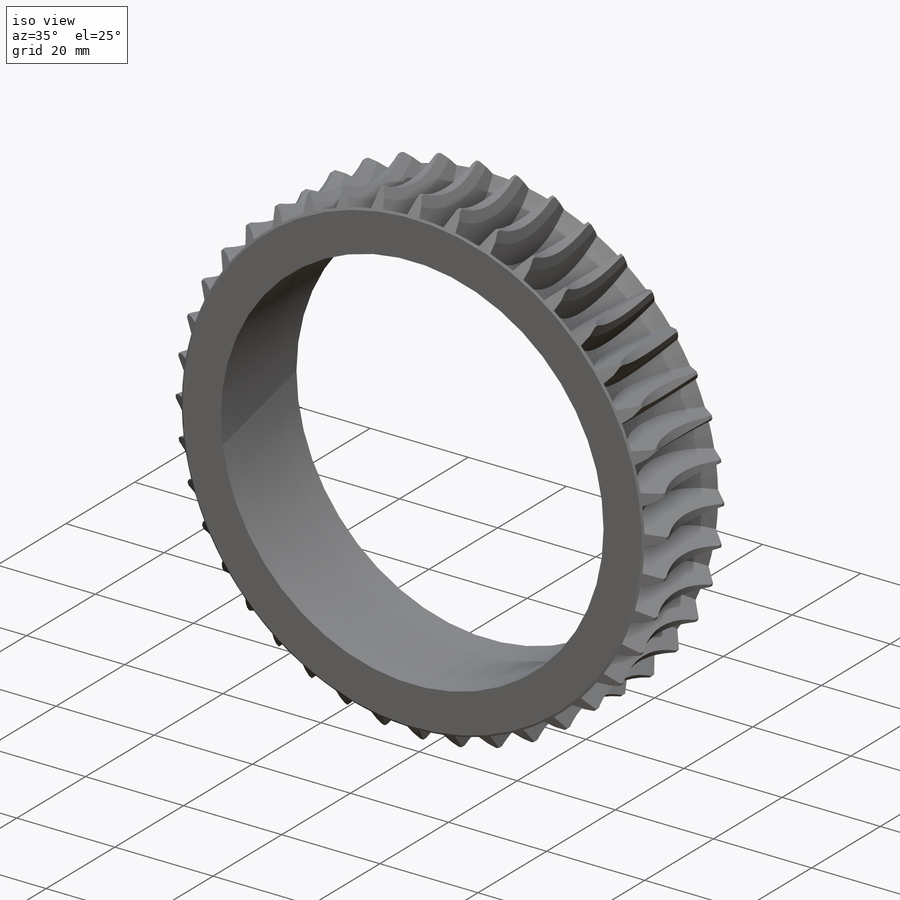
[diagram: iso view]
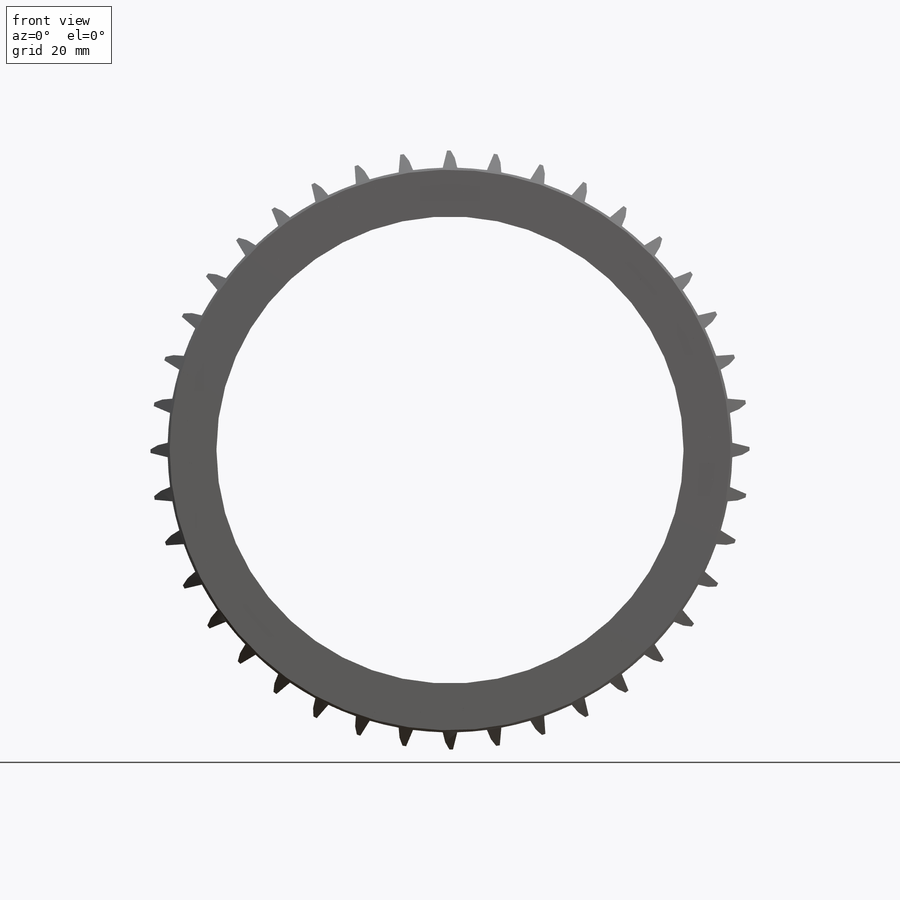
[diagram: front view]
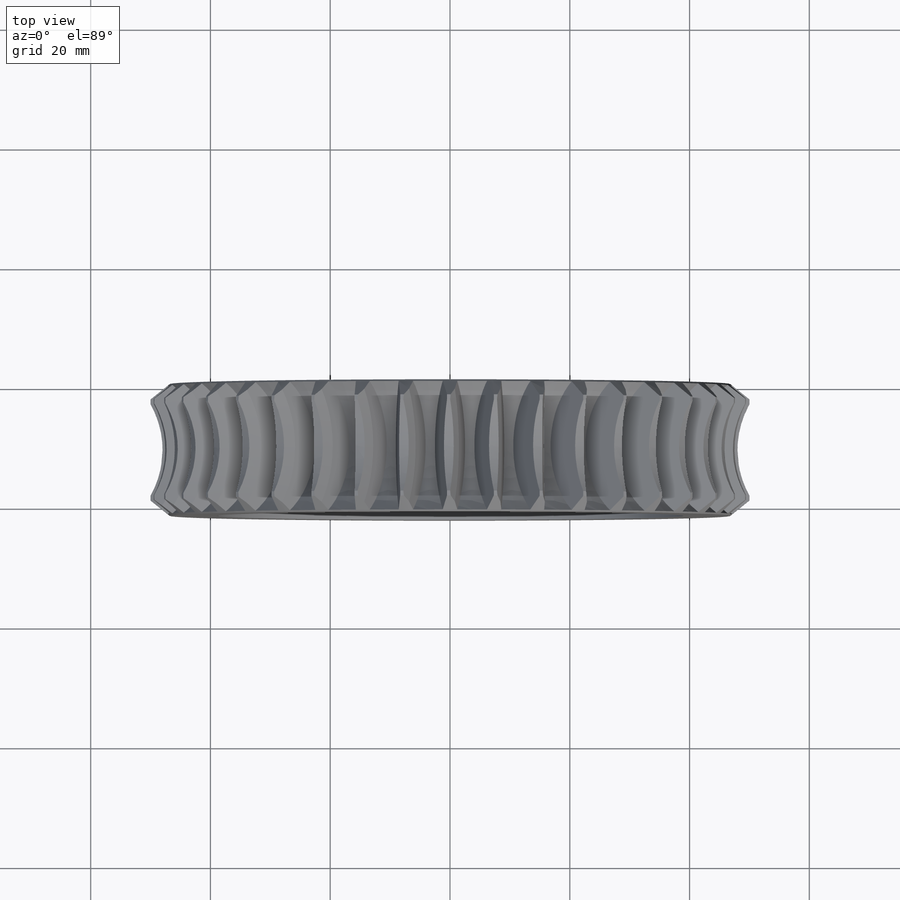
[diagram: top view]
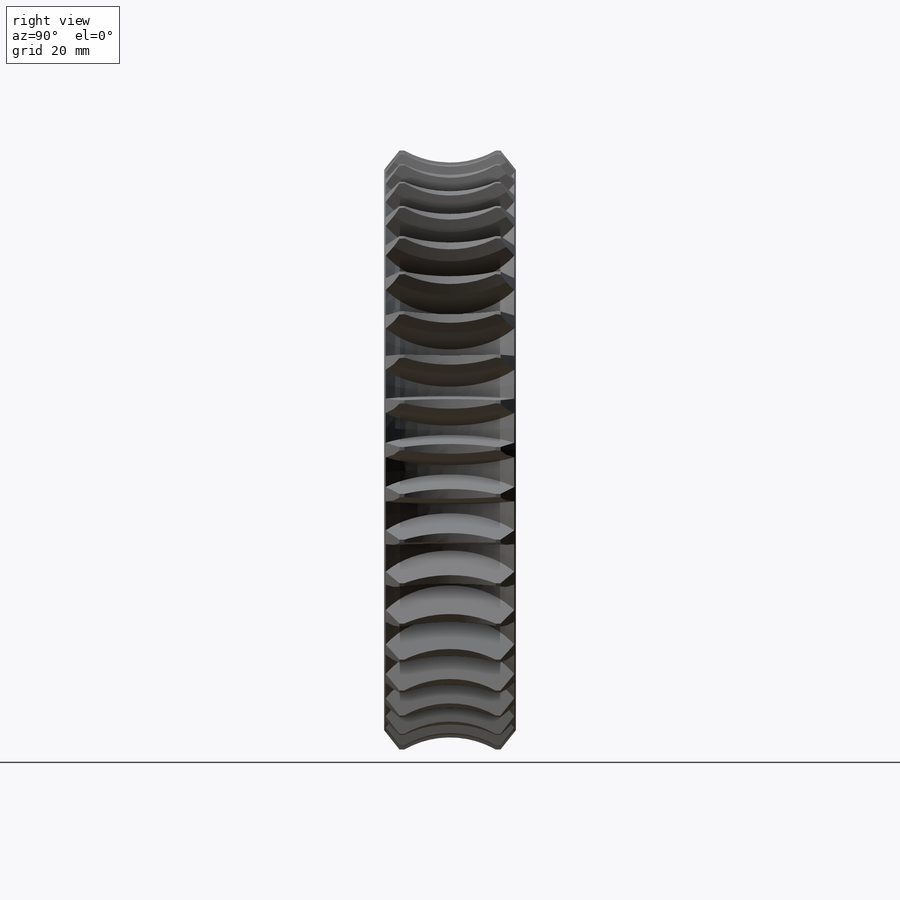
[diagram: right view]
SOLIDWORKS PART (.sldprt)
format: sldprt  version: not decoded by parser v0  size: 1,277,440 bytes
history: native  units: mm
features: sketch x7, cut_revolve x4, extrude x2, material x1, plane x1, pattern_circular x1, chamfer x1 (+16 scaffold rows collapsed)
feature tree (33):
  scaffold x16  (default folders/planes/origin — collapsed)
  material  "Brass"
  sketch  "Sketch1"  dims[D1=78.0mm D2=95.0mm]
  extrude  "Extrude1"  Depth=22mm
  sketch  "Sketch2"  dims[D1=5.5mm]
  cut_revolve  "Cut-Revolve2"  Angle=360deg
  plane  "Plane1"  Offset=50mm
  sketch  "Sketch4"  dims[D1=1.0mm]
  extrude  "Extrude4"  Depth=10mm
  sketch  "Sketch6"  dims[c1.D1=~26.045389mm c1.D2=31.0mm c2.D1=2.0mm c2.D3=11.0mm c2.D4=~20.443369mm]
  cut_revolve  "Cut-Revolve4"  Angle=360deg
  pattern_circular  "CirPattern1"  Count=40 Angle=9deg
  sketch  "Sketch5"  dims[D1=1.0mm D2=1.0mm D3=1.0mm D4=1.0mm D5=5.0mm D6=5.0mm]
  cut_revolve  "Cut-Revolve3"  Angle=360deg
  sketch  "Sketch7"  dims[c1.D1=2.5mm c1.D2=2.0mm c1.D3=11.0mm c1.D4=~3.201562mm c2.D1=~3.201562mm c2.D2=2.0mm c2.D4=4.0mm c2.D5=~0.518536mm]
  cut_revolve  "Cut-Revolve13"  Angle=360deg
  sketch  "Sketch9"  dims[D1=11.0mm]
  chamfer  "Chamfer1"  Distance=2mm Angle=10deg
decode coverage: 15 of 15 modeling features carry decoded parameters
note: ~ marks probable driven/reference dimensions
note: suppression state not decoded; provenance and decode notes live in map.json
